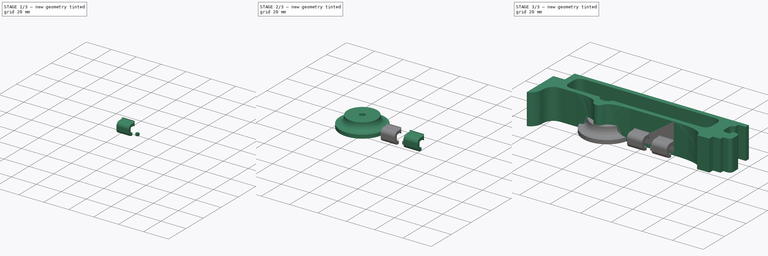
[diagram: build sequence overview — one tinted view per stage of 3, left to right]
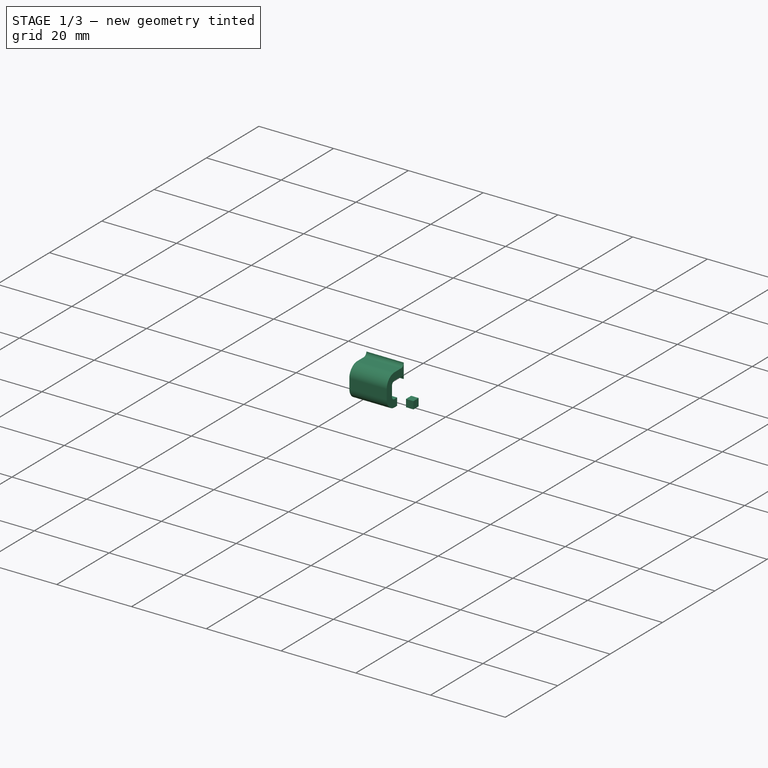
[diagram: stage 1 of 3 — iso view after this stage's code; geometry added in this stage tinted green]
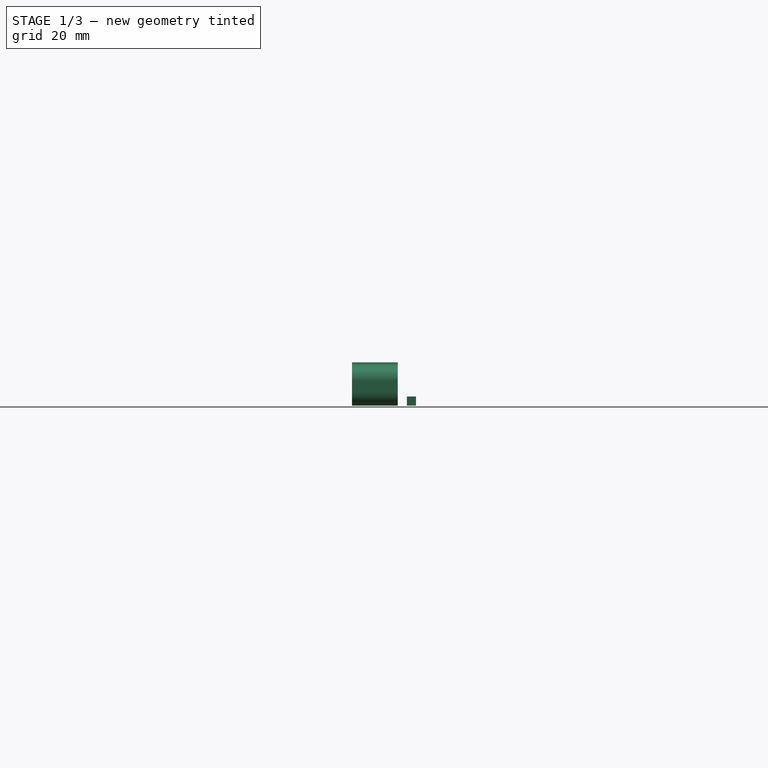
[diagram: stage 1 of 3 — front view after this stage's code; geometry added in this stage tinted green]
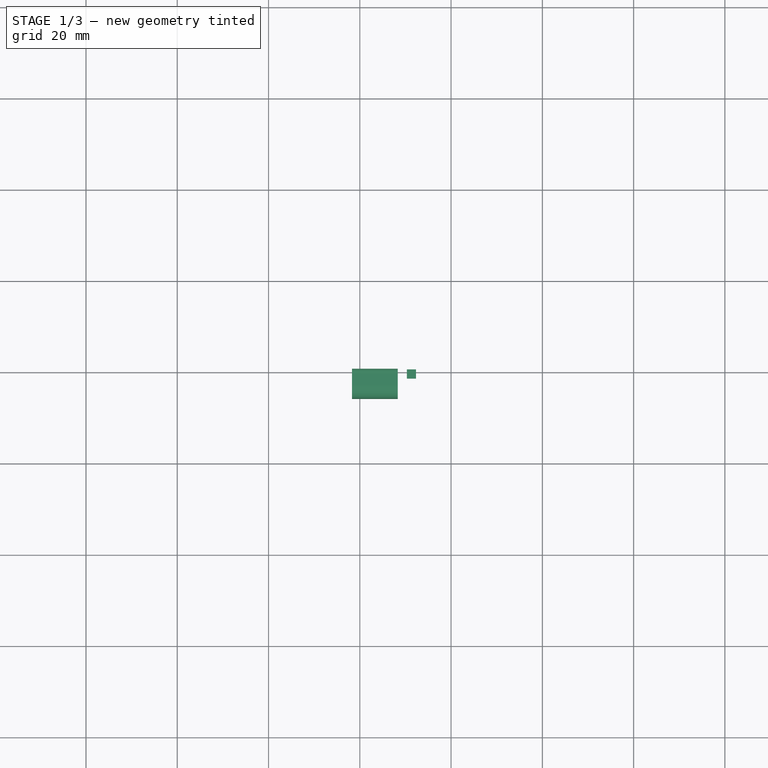
[diagram: stage 1 of 3 — top view after this stage's code; geometry added in this stage tinted green]
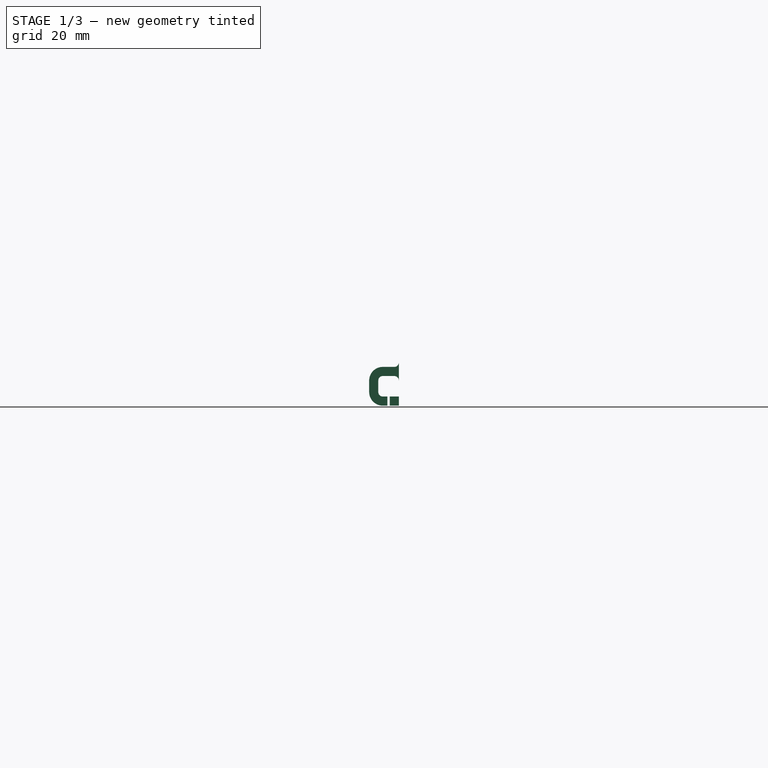
[diagram: stage 1 of 3 — right view after this stage's code; geometry added in this stage tinted green]
FCSTD DOCUMENT  (FreeCAD 0.19R0.19.2)
Label: v0_18
License: All rights reserved
LicenseURL: http://en.wikipedia.org/wiki/All_rights_reserved
objects: Sketcher::SketchObject×5, Part::Extrusion×4, Part::Revolution×1, Part::Box×1
note: 11 computed .brp shape members not serialized (recipe doc carries the construction recipe); baked Part::Feature solids carry a one-line shape summary decoded from their .brp

FEATURE [Sketcher::SketchObject] Sketch045
  FullyConstrained = true
  MapMode = 4
  Placement = pos=(0,0,0) rot=(0.57735,0.57735,0.57735;2.0944rad)
  sketch-geometry (14):
    g0: LineSegment StartX=6.08745 StartY=-4.11588 StartZ=0 EndX=6.08745 EndY=-2.11589 EndZ=0
    g1: LineSegment StartX=8.08745 StartY=1.38411 StartZ=0 EndX=8.08745 EndY=-1.11589 EndZ=0
    g2: ArcOfCircle CenterX=7.08745 CenterY=-1.11589 CenterZ=0 NormalX=0 NormalY=0 NormalZ=1 AngleXU=0 Radius=1 StartAngle=4.71239 EndAngle=6.28319
    g3: LineSegment StartX=6.08745 StartY=-2.11589 StartZ=0 EndX=7.08745 EndY=-2.11589 EndZ=0
    g4: LineSegment StartX=6.08745 StartY=-4.11588 StartZ=0 EndX=7.08745 EndY=-4.11588 EndZ=0
    g5: ArcOfCircle CenterX=7.08745 CenterY=-1.11589 CenterZ=0 NormalX=0 NormalY=0 NormalZ=1 AngleXU=0 Radius=3 StartAngle=4.71239 EndAngle=6.28319
    g6: ArcOfCircle CenterX=7.08745 CenterY=1.38411 CenterZ=0 NormalX=0 NormalY=0 NormalZ=1 AngleXU=0 Radius=1 StartAngle=5.35e-14 EndAngle=1.5708
    g7: LineSegment StartX=10.0875 StartY=-1.11588 StartZ=0 EndX=10.0875 EndY=1.38411 EndZ=0
    g8: ArcOfCircle CenterX=7.08745 CenterY=1.38411 CenterZ=0 NormalX=0 NormalY=0 NormalZ=1 AngleXU=0 Radius=3 StartAngle=3.57e-14 EndAngle=1.5708
    g9: ArcOfCircle CenterX=4.58745 CenterY=1.38412 CenterZ=0 NormalX=0 NormalY=0 NormalZ=1 AngleXU=0 Radius=1 StartAngle=1.57081 EndAngle=3.14159
    g10: LineSegment StartX=4.58744 StartY=2.38411 StartZ=0 EndX=7.08745 EndY=2.38411 EndZ=0
    g11: LineSegment StartX=4.58745 StartY=4.38411 StartZ=0 EndX=7.08745 EndY=4.38411 EndZ=0
    g12: ArcOfCircle CenterX=4.58745 CenterY=5.38411 CenterZ=0 NormalX=0 NormalY=0 NormalZ=1 AngleXU=0 Radius=1 StartAngle=3.14159 EndAngle=4.71239
    g13: LineSegment StartX=3.58745 StartY=5.38411 StartZ=0 EndX=3.58745 EndY=1.38411 EndZ=0
  constraints (33):
    c: Vertical(g0)
    c: Block(g0)
    c: Block(g1)
    c: Coincident(g2,g1)
    c: Coincident(g3,g0)
    c: Coincident(g3,g2)
    c: Horizontal(g3)
    c: Block(g2)
    c: Coincident(g4,g0)
    c: Horizontal(g4)
    c: Coincident(g5,g2)
    c: Block(g5)
    c: Block(g4)
    c: Coincident(g6,g1)
    c: Block(g6)
    c: Coincident(g7,g5)
    c: Vertical(g7)
    c: Coincident(g8,g6)
    c: Block(g8)
    c: Block(g7)
    c: Coincident(g10,g9)
    c: Coincident(g10,g6)
    c: Horizontal(g10)
    c: Block(g10)
    c: Block(g9)
    c: Coincident(g11,g8)
    c: Horizontal(g11)
    c: Block(g12)
    c: Block(g11)
    c: Coincident(g13,g12)
    c: Coincident(g13,g9)
    c: Vertical(g13)
    c: Tangent(g13,g9)
FEATURE [Part::Extrusion] Extrude040
  Base = -> Sketch045
  Dir = (1,0,0)
  DirMode = 2
  FaceMakerClass = Part::FaceMakerBullseye
  LengthFwd = 10
  LengthRev = 0
  Placement = pos=(-71.7,-15.71,4.115) rot=(0,0,1;3.14159rad)
  Solid = true
  Symmetric = false
FEATURE [Part::Box] Box016  label="Cube016"
  AttacherType = Attacher::AttachEngine3D
  Height = 2
  Length = 2
  Placement = pos=(-69.7,-21.3,0) rot=(0,0,1;0rad)
  Width = 2
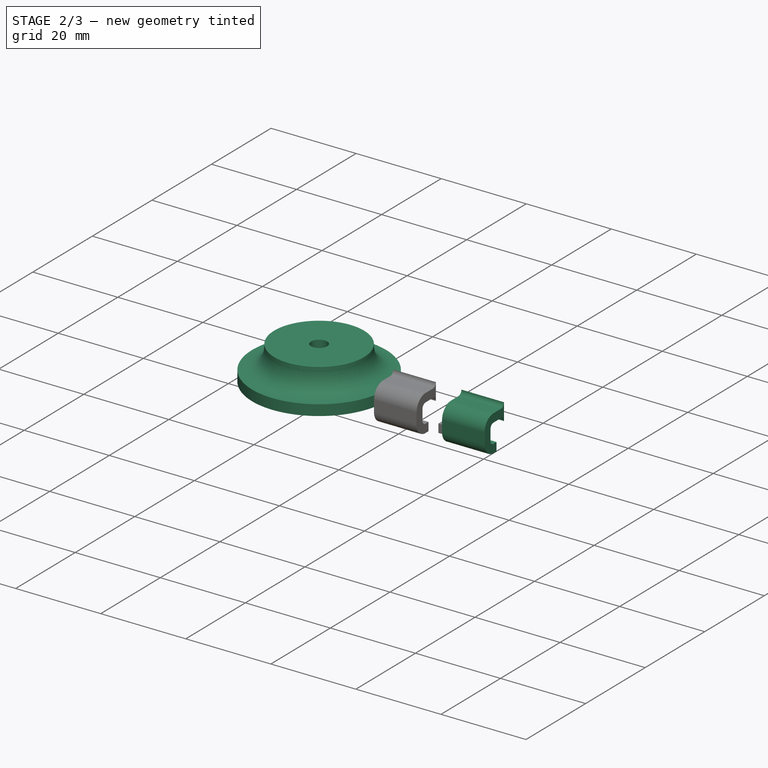
[diagram: stage 2 of 3 — iso view after this stage's code; geometry added in this stage tinted green]
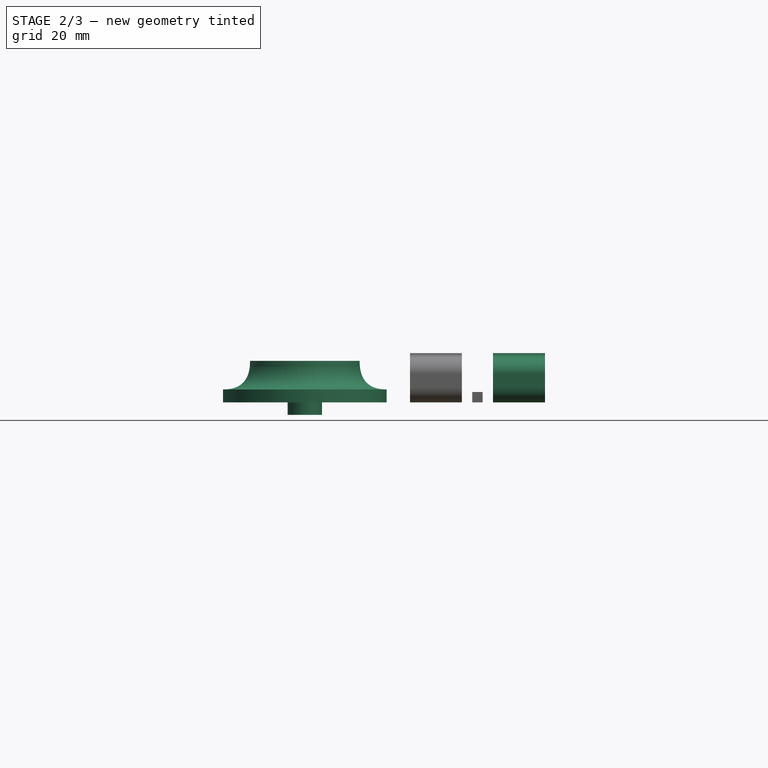
[diagram: stage 2 of 3 — front view after this stage's code; geometry added in this stage tinted green]
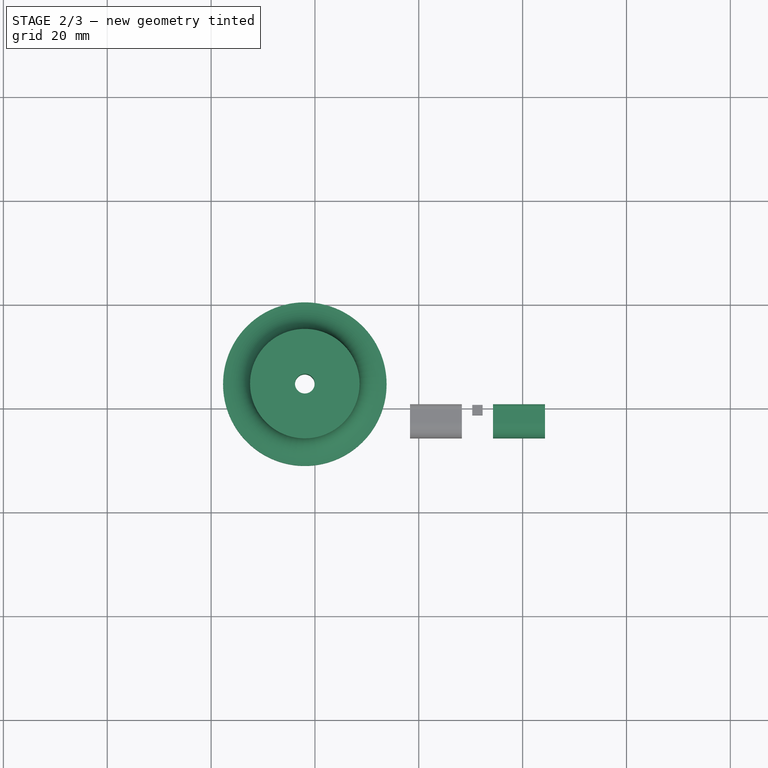
[diagram: stage 2 of 3 — top view after this stage's code; geometry added in this stage tinted green]
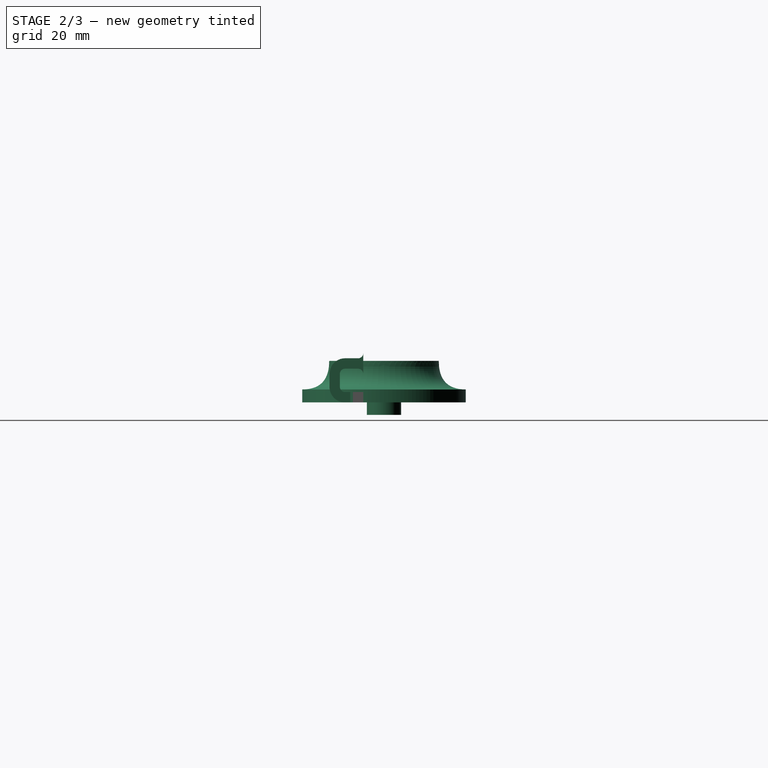
[diagram: stage 2 of 3 — right view after this stage's code; geometry added in this stage tinted green]
FEATURE [Sketcher::SketchObject] Sketch004
  FullyConstrained = true
  Placement = pos=(0,0,0) rot=(1,0,0;1.5708rad)
  sketch-geometry (12):
    g0: LineSegment StartX=15.75 StartY=2.5 StartZ=0 EndX=15.75 EndY=0 EndZ=0
    g1: Circle CenterX=15.75 CenterY=2.5 CenterZ=0 NormalX=0 NormalY=0 NormalZ=1 AngleXU=0 Radius=1
    g2: Circle CenterX=10.55 CenterY=2.5 CenterZ=0 NormalX=0 NormalY=0 NormalZ=1 AngleXU=0 Radius=1
    g3: Circle CenterX=10.55 CenterY=8 CenterZ=0 NormalX=0 NormalY=0 NormalZ=1 AngleXU=0 Radius=1
    g4: BSplineCurve PolesCount=3 KnotsCount=2 Degree=2 IsPeriodic=0
    g5: GeomPoint X=15.75 Y=2.5 Z=0
    g6: GeomPoint X=10.55 Y=8 Z=0
    g7: LineSegment StartX=1.9 StartY=8 StartZ=0 EndX=10.55 EndY=8 EndZ=0
    g8: LineSegment StartX=1.9 StartY=-2.4 StartZ=0 EndX=1.9 EndY=8 EndZ=0
    g9: LineSegment StartX=3.30092 StartY=-2.4 StartZ=0 EndX=3.30092 EndY=0 EndZ=0
    g10: LineSegment StartX=15.75 StartY=0 StartZ=0 EndX=3.30092 EndY=0 EndZ=0
    g11: LineSegment StartX=3.30092 StartY=-2.4 StartZ=0 EndX=1.9 EndY=-2.4 EndZ=0
  constraints (26):
    c: Vertical(g0)
    c: Distance(g0) = 2.5
    c: Coincident(g4,g0)
    c: Weight(g1) = 1
    c: Equal(g1,g2)
    c: Equal(g1,g3)
    c: InternalAlignment(g1,g4)
    c: InternalAlignment(g2,g4)
    c: InternalAlignment(g3,g4)
    c: InternalAlignment(g5,g4)
    c: InternalAlignment(g6,g4)
    c: Block(g4)
    c: Coincident(g7,g4)
    c: Horizontal(g7)
    c: Vertical(g8)
    c: Coincident(g8,g7)
    c: Block(g8)
    c: Vertical(g9)
    c: Coincident(g10,g0)
    c: PointOnObject(g10,g-1)
    c: Horizontal(g10)
    c: Coincident(g10,g9)
    c: Block(g9)
    c: Coincident(g11,g9)
    c: Coincident(g11,g8)
    c: Horizontal(g11)
FEATURE [Part::Revolution] Revolve  label="mainScrewStandRevolve"
  Angle = 360
  Axis = (0,0,1)
  Base = (0,0,0)
  FaceMakerClass = Part::FaceMakerBullseye
  Placement = pos=(-101.95,-15.3,0) rot=(0,0,1;0rad)
  Solid = true
  Source = -> Sketch004
  Symmetric = false
FEATURE [Sketcher::SketchObject] Sketch044
  FullyConstrained = true
  MapMode = 4
  Placement = pos=(0,0,0) rot=(0.57735,0.57735,0.57735;2.0944rad)
  sketch-geometry (14):
    g0: LineSegment StartX=6.08745 StartY=-4.11588 StartZ=0 EndX=6.08745 EndY=-2.11589 EndZ=0
    g1: LineSegment StartX=8.08745 StartY=1.38411 StartZ=0 EndX=8.08745 EndY=-1.11589 EndZ=0
    g2: ArcOfCircle CenterX=7.08745 CenterY=-1.11589 CenterZ=0 NormalX=0 NormalY=0 NormalZ=1 AngleXU=0 Radius=1 StartAngle=4.71239 EndAngle=6.28319
    g3: LineSegment StartX=6.08745 StartY=-2.11589 StartZ=0 EndX=7.08745 EndY=-2.11589 EndZ=0
    g4: LineSegment StartX=6.08745 StartY=-4.11588 StartZ=0 EndX=7.08745 EndY=-4.11588 EndZ=0
    g5: ArcOfCircle CenterX=7.08745 CenterY=-1.11589 CenterZ=0 NormalX=0 NormalY=0 NormalZ=1 AngleXU=0 Radius=3 StartAngle=4.71239 EndAngle=6.28319
    g6: ArcOfCircle CenterX=7.08745 CenterY=1.38411 CenterZ=0 NormalX=0 NormalY=0 NormalZ=1 AngleXU=0 Radius=1 StartAngle=5.35e-14 EndAngle=1.5708
    g7: LineSegment StartX=10.0875 StartY=-1.11588 StartZ=0 EndX=10.0875 EndY=1.38411 EndZ=0
    g8: ArcOfCircle CenterX=7.08745 CenterY=1.38411 CenterZ=0 NormalX=0 NormalY=0 NormalZ=1 AngleXU=0 Radius=3 StartAngle=3.57e-14 EndAngle=1.5708
    g9: ArcOfCircle CenterX=4.58745 CenterY=1.38412 CenterZ=0 NormalX=0 NormalY=0 NormalZ=1 AngleXU=0 Radius=1 StartAngle=1.57081 EndAngle=3.14159
    g10: LineSegment StartX=4.58744 StartY=2.38411 StartZ=0 EndX=7.08745 EndY=2.38411 EndZ=0
    g11: LineSegment StartX=4.58745 StartY=4.38411 StartZ=0 EndX=7.08745 EndY=4.38411 EndZ=0
    g12: ArcOfCircle CenterX=4.58745 CenterY=5.38411 CenterZ=0 NormalX=0 NormalY=0 NormalZ=1 AngleXU=0 Radius=1 StartAngle=3.14159 EndAngle=4.71239
    g13: LineSegment StartX=3.58745 StartY=5.38411 StartZ=0 EndX=3.58745 EndY=1.38411 EndZ=0
  constraints (33):
    c: Vertical(g0)
    c: Block(g0)
    c: Block(g1)
    c: Coincident(g2,g1)
    c: Coincident(g3,g0)
    c: Coincident(g3,g2)
    c: Horizontal(g3)
    c: Block(g2)
    c: Coincident(g4,g0)
    c: Horizontal(g4)
    c: Coincident(g5,g2)
    c: Block(g5)
    c: Block(g4)
    c: Coincident(g6,g1)
    c: Block(g6)
    c: Coincident(g7,g5)
    c: Vertical(g7)
    c: Coincident(g8,g6)
    c: Block(g8)
    c: Block(g7)
    c: Coincident(g10,g9)
    c: Coincident(g10,g6)
    c: Horizontal(g10)
    c: Block(g10)
    c: Block(g9)
    c: Coincident(g11,g8)
    c: Horizontal(g11)
    c: Block(g12)
    c: Block(g11)
    c: Coincident(g13,g12)
    c: Coincident(g13,g9)
    c: Vertical(g13)
    c: Tangent(g13,g9)
FEATURE [Part::Extrusion] Extrude039
  Base = -> Sketch044
  Dir = (1,0,0)
  DirMode = 2
  FaceMakerClass = Part::FaceMakerBullseye
  LengthFwd = 10
  LengthRev = 0
  Placement = pos=(-55.7,-15.71,4.115) rot=(0,0,1;3.14159rad)
  Solid = true
  Symmetric = false
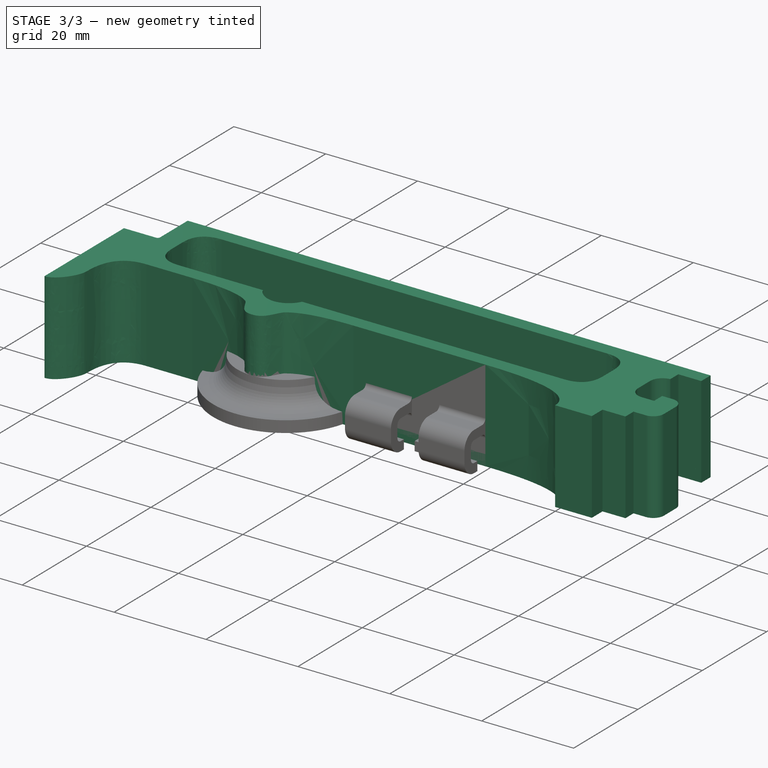
[diagram: stage 3 of 3 — iso view after this stage's code; geometry added in this stage tinted green]
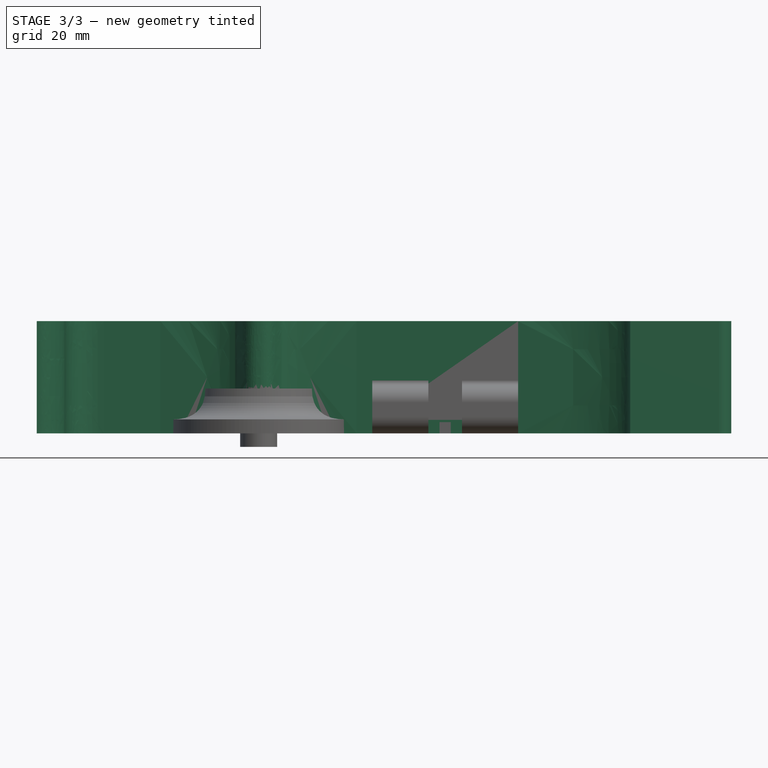
[diagram: stage 3 of 3 — front view after this stage's code; geometry added in this stage tinted green]
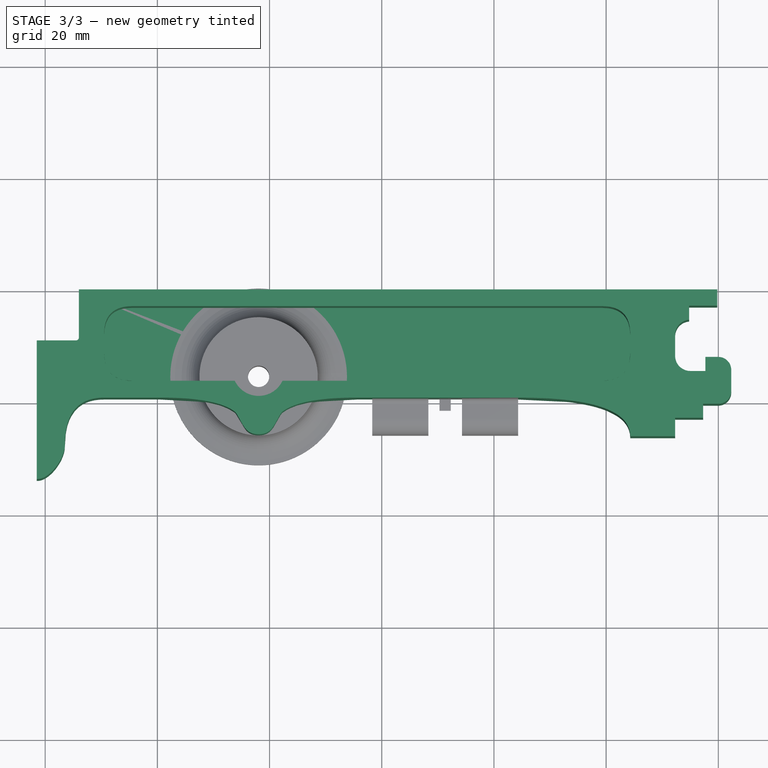
[diagram: stage 3 of 3 — top view after this stage's code; geometry added in this stage tinted green]
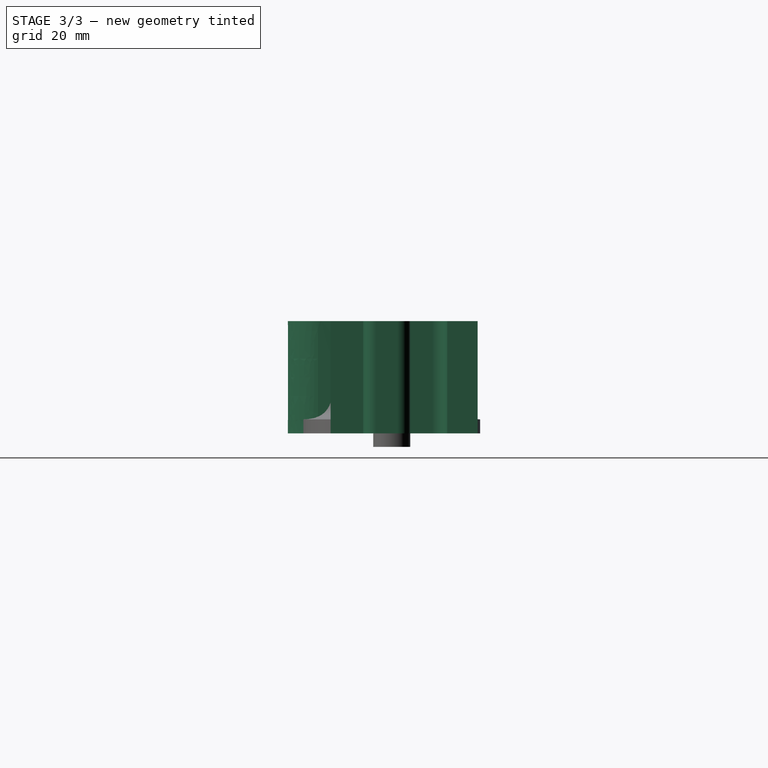
[diagram: stage 3 of 3 — right view after this stage's code; geometry added in this stage tinted green]
FEATURE [Sketcher::SketchObject] Sketch
  FullyConstrained = true
  sketch-geometry (69):
    g0: ArcOfCircle CenterX=-20 CenterY=-14.35 CenterZ=0 NormalX=0 NormalY=0 NormalZ=1 AngleXU=0 Radius=2.3 StartAngle=8e-16 EndAngle=1.5708
    g1: ArcOfCircle CenterX=-20 CenterY=-18.1 CenterZ=0 NormalX=0 NormalY=0 NormalZ=1 AngleXU=0 Radius=2.3 StartAngle=4.71239 EndAngle=6.28319
    g2: LineSegment StartX=-20 StartY=-20.4 StartZ=0 EndX=-22.7 EndY=-20.4 EndZ=0
    g3: LineSegment StartX=-22.7 StartY=-22.9 StartZ=0 EndX=-22.7 EndY=-20.4 EndZ=0
    g4: LineSegment StartX=-17.7 StartY=-14.35 StartZ=0 EndX=-17.7 EndY=-18.1 EndZ=0
    g5: LineSegment StartX=-25.2 StartY=-5.40742 StartZ=0 EndX=-25.2 EndY=-2.9 EndZ=0
    g6: LineSegment StartX=-25.2 StartY=-2.9 StartZ=0 EndX=-20.2 EndY=-2.9 EndZ=0
    g7: LineSegment StartX=-20.2 StartY=-2.9 StartZ=0 EndX=-20.2 EndY=0 EndZ=0
    g8: ArcOfCircle CenterX=-25 CenterY=-8.1 CenterZ=0 NormalX=0 NormalY=0 NormalZ=1 AngleXU=0 Radius=2.7 StartAngle=1.64494 EndAngle=3.14159
    g9: ArcOfCircle CenterX=-25 CenterY=-11.85 CenterZ=0 NormalX=0 NormalY=0 NormalZ=1 AngleXU=0 Radius=2.7 StartAngle=3.14159 EndAngle=4.71239
    g10: LineSegment StartX=-27.7 StartY=-8.1 StartZ=0 EndX=-27.7 EndY=-11.85 EndZ=0
    g11: LineSegment StartX=-25 StartY=-14.55 StartZ=0 EndX=-22.3 EndY=-14.55 EndZ=0
    g12: LineSegment StartX=-22.3 StartY=-12.05 StartZ=0 EndX=-22.3 EndY=-14.55 EndZ=0
    g13: LineSegment StartX=-22.3 StartY=-12.05 StartZ=0 EndX=-20 EndY=-12.05 EndZ=0
    g14: LineSegment StartX=-27.7 StartY=-22.9 StartZ=0 EndX=-22.7 EndY=-22.9 EndZ=0
    g15: LineSegment StartX=-27.7 StartY=-22.9 StartZ=0 EndX=-27.7 EndY=-26.2 EndZ=0
    g16: Circle CenterX=-101.95 CenterY=-14.3 CenterZ=0 NormalX=0 NormalY=0 NormalZ=1 AngleXU=0 Radius=3.25
    g17: LineSegment StartX=-134 StartY=0 StartZ=0 EndX=-20.2 EndY=0 EndZ=0
    g18: LineSegment StartX=-134 StartY=2.68e-14 StartZ=0 EndX=-134 EndY=-8.6 EndZ=0
    g19: LineSegment StartX=-134.5 StartY=-9.1 StartZ=0 EndX=-141.5 EndY=-9.1 EndZ=0
    g20: ArcOfCircle CenterX=-134.5 CenterY=-8.6 CenterZ=0 NormalX=0 NormalY=0 NormalZ=1 AngleXU=0 Radius=0.5 StartAngle=4.71239 EndAngle=6.28319
    g21: Circle CenterX=-97.7 CenterY=-21.8 CenterZ=0 NormalX=0 NormalY=0 NormalZ=1 AngleXU=0 Radius=1
    g22: Circle CenterX=-94.45 CenterY=-19.3 CenterZ=0 NormalX=0 NormalY=0 NormalZ=1 AngleXU=0 Radius=1
    g23: Circle CenterX=-84.45 CenterY=-19.3 CenterZ=0 NormalX=0 NormalY=0 NormalZ=1 AngleXU=0 Radius=1
    g24: BSplineCurve PolesCount=3 KnotsCount=2 Degree=2 IsPeriodic=0
    g25: GeomPoint X=-97.7 Y=-21.8 Z=0
    g26: GeomPoint X=-84.45 Y=-19.3 Z=0
    g27: Circle CenterX=-106.2 CenterY=-21.8 CenterZ=0 NormalX=0 NormalY=0 NormalZ=1 AngleXU=0 Radius=1
    g28: Circle CenterX=-109.45 CenterY=-19.3 CenterZ=0 NormalX=0 NormalY=0 NormalZ=1 AngleXU=0 Radius=1
    g29: Circle CenterX=-119.45 CenterY=-19.3 CenterZ=0 NormalX=0 NormalY=0 NormalZ=1 AngleXU=0 Radius=1
    g30: BSplineCurve PolesCount=3 KnotsCount=2 Degree=2 IsPeriodic=0
    g31: GeomPoint X=-106.2 Y=-21.8 Z=0
    g32: GeomPoint X=-119.45 Y=-19.3 Z=0
    g33: LineSegment StartX=-141.5 StartY=-9.1 StartZ=0 EndX=-141.5 EndY=-33.8 EndZ=0
    g34-g37: Circle x4 (B-spline internal-alignment scaffolding for g38; pole/knot coordinates omitted)
    g38: BSplineCurve PolesCount=4 KnotsCount=2 Degree=3 IsPeriodic=0
    g39: GeomPoint X=-141.5 Y=-33.8 Z=0
    g40: GeomPoint X=-136.5 Y=-27.8 Z=0
    g41: Circle CenterX=-136.5 CenterY=-27.8 CenterZ=0 NormalX=0 NormalY=0 NormalZ=1 AngleXU=0 Radius=1
    g42: Circle CenterX=-136.5 CenterY=-19.3 CenterZ=0 NormalX=0 NormalY=0 NormalZ=1 AngleXU=0 Radius=1
    g43: Circle CenterX=-129.5 CenterY=-19.3 CenterZ=0 NormalX=0 NormalY=0 NormalZ=1 AngleXU=0 Radius=1
    g44: BSplineCurve PolesCount=3 KnotsCount=2 Degree=2 IsPeriodic=0
    g45: GeomPoint X=-136.5 Y=-27.8 Z=0
    g46: GeomPoint X=-129.5 Y=-19.3 Z=0
    g47: LineSegment StartX=-129.5 StartY=-19.3 StartZ=0 EndX=-119.45 EndY=-19.3 EndZ=0
    g48: LineSegment StartX=-35.7 StartY=-26.2 StartZ=0 EndX=-27.7 EndY=-26.2 EndZ=0
    g49: Circle CenterX=-35.7 CenterY=-26.2 CenterZ=0 NormalX=0 NormalY=0 NormalZ=1 AngleXU=0 Radius=1
    g50: Circle CenterX=-35.7 CenterY=-19.3 CenterZ=0 NormalX=0 NormalY=0 NormalZ=1 AngleXU=0 Radius=1
    g51: Circle CenterX=-55.7 CenterY=-19.3 CenterZ=0 NormalX=0 NormalY=0 NormalZ=1 AngleXU=0 Radius=1
    g52: BSplineCurve PolesCount=3 KnotsCount=2 Degree=2 IsPeriodic=0
    g53: GeomPoint X=-35.7 Y=-26.2 Z=0
    g54: GeomPoint X=-55.7 Y=-19.3 Z=0
    g55: LineSegment StartX=-84.45 StartY=-19.3 StartZ=0 EndX=-55.7 EndY=-19.3 EndZ=0
    g56-g62: Circle x7 (B-spline internal-alignment scaffolding for g63; pole/knot coordinates omitted)
    g63: BSplineCurve PolesCount=7 KnotsCount=5 Degree=3 IsPeriodic=0
    g64-g68: GeomPoint x5 (B-spline internal-alignment scaffolding for g63; pole/knot coordinates omitted)
  constraints (111):
    c: Block(g1)
    c: Block(g0)
    c: Coincident(g2,g1)
    c: Horizontal(g2)
    c: Vertical(g3)
    c: Coincident(g3,g2)
    c: Coincident(g4,g0)
    c: Coincident(g4,g1)
    c: Vertical(g4)
    c: Vertical(g5)
    c: Block(g5)
    c: Coincident(g6,g5)
    c: Horizontal(g6)
    c: Vertical(g7)
    c: Block(g7)
    c: Block(g6)
    c: Coincident(g8,g5)
    c: Block(g9)
    c: Coincident(g10,g8)
    c: Coincident(g10,g9)
    c: Vertical(g10)
    c: Block(g10)
    c: Coincident(g11,g9)
    c: Horizontal(g11)
    c: Vertical(g12)
    c: Coincident(g12,g11)
    c: Block(g12)
    c: Coincident(g13,g0)
    c: Horizontal(g13)
    c: Block(g13)
    c: Coincident(g14,g3)
    c: Horizontal(g14)
    c: Block(g14)
    c: Coincident(g15,g14)
    c: Vertical(g15)
    c: Block(g16)
    c: Coincident(g17,g7)
    c: Horizontal(g17)
    c: Vertical(g18)
    c: Distance(g18) = 8.6
    c: Horizontal(g19)
    c: Distance(g19) = 7
    c: Coincident(g20,g18)
    c: Coincident(g20,g19)
    c: Block(g20)
    c: Block(g17)
    c: Weight(g21) = 1
    c: Equal(g21,g22)
    c: Equal(g21,g23)
    c: InternalAlignment(g21,g24)
    c: InternalAlignment(g22,g24)
    c: InternalAlignment(g23,g24)
    c: InternalAlignment(g25,g24)
    c: InternalAlignment(g26,g24)
    c: Weight(g27) = 1
    c: Equal(g27,g28)
    c: Equal(g27,g29)
    c: InternalAlignment(g27,g30)
    c: InternalAlignment(g28,g30)
    c: InternalAlignment(g29,g30)
    c: InternalAlignment(g31,g30)
    c: InternalAlignment(g32,g30)
    c: Block(g30)
    c: Block(g24)
    c: Coincident(g33,g19)
    c: Vertical(g33)
    c: Block(g33)
    c: Coincident(g38,g33)
    c: Weight(g34) = 1
    c: Equal(g34,g35)
    c: Equal(g34,g36)
    c: Equal(g34,g37)
    c: InternalAlignment(g34-g37 -> g38) x4
    c: InternalAlignment(g39,g38)
    c: InternalAlignment(g40,g38)
    c: Weight(g41) = 1
    c: Equal(g41,g42)
    c: Equal(g41,g43)
    c: InternalAlignment(g41,g44)
    c: InternalAlignment(g42,g44)
    c: InternalAlignment(g43,g44)
    c: InternalAlignment(g45,g44)
    c: InternalAlignment(g46,g44)
    c: Block(g38)
    c: Block(g44)
    c: Coincident(g47,g44)
    c: Coincident(g47,g30)
    c: Horizontal(g47)
    c: Horizontal(g48)
    c: Distance(g48) = 8
    c: Block(g48)
    c: Block(g15)
    c: Block(g8)
    c: Coincident(g52,g48)
    c: Weight(g49) = 1
    c: Equal(g49,g50)
    c: Equal(g49,g51)
    c: InternalAlignment(g49,g52)
    c: InternalAlignment(g50,g52)
    c: InternalAlignment(g51,g52)
    c: InternalAlignment(g53,g52)
    c: InternalAlignment(g54,g52)
    c: Block(g52)
    c: Coincident(g55,g24)
    c: Coincident(g55,g52)
    c: Horizontal(g55)
    c: Weight(g56) = 1
    c: Equal(g56, g57-g62) x6
    c: InternalAlignment(g56-g62 -> g63) x7
    c: InternalAlignment(g64-g68 -> g63) x5
    c: Block(g63)
FEATURE [Part::Extrusion] Extrude
  Base = -> Sketch
  Dir = (0,0,1)
  DirMode = 2
  FaceMakerClass = Part::FaceMakerBullseye
  LengthFwd = 2.4
  LengthRev = 0
  Solid = true
  Symmetric = false
FEATURE [Sketcher::SketchObject] Sketch001
  FullyConstrained = true
  sketch-geometry (98):
    g0: ArcOfCircle CenterX=-20 CenterY=-14.35 CenterZ=0 NormalX=0 NormalY=0 NormalZ=1 AngleXU=0 Radius=2.3 StartAngle=8e-16 EndAngle=1.5708
    g1: ArcOfCircle CenterX=-20 CenterY=-18.1 CenterZ=0 NormalX=0 NormalY=0 NormalZ=1 AngleXU=0 Radius=2.3 StartAngle=4.71239 EndAngle=6.28319
    g2: LineSegment StartX=-20 StartY=-20.4 StartZ=0 EndX=-22.7 EndY=-20.4 EndZ=0
    g3: LineSegment StartX=-22.7 StartY=-22.9 StartZ=0 EndX=-22.7 EndY=-20.4 EndZ=0
    g4: LineSegment StartX=-17.7 StartY=-14.35 StartZ=0 EndX=-17.7 EndY=-18.1 EndZ=0
    g5: LineSegment StartX=-25.2 StartY=-5.40742 StartZ=0 EndX=-25.2 EndY=-2.9 EndZ=0
    g6: LineSegment StartX=-25.2 StartY=-2.9 StartZ=0 EndX=-20.2 EndY=-2.9 EndZ=0
    g7: LineSegment StartX=-20.2 StartY=-2.9 StartZ=0 EndX=-20.2 EndY=0 EndZ=0
    g8: ArcOfCircle CenterX=-25 CenterY=-8.1 CenterZ=0 NormalX=0 NormalY=0 NormalZ=1 AngleXU=0 Radius=2.7 StartAngle=1.64494 EndAngle=3.14159
    g9: ArcOfCircle CenterX=-25 CenterY=-11.85 CenterZ=0 NormalX=0 NormalY=0 NormalZ=1 AngleXU=0 Radius=2.7 StartAngle=3.14159 EndAngle=4.71239
    g10: LineSegment StartX=-27.7 StartY=-8.1 StartZ=0 EndX=-27.7 EndY=-11.85 EndZ=0
    g11: LineSegment StartX=-25 StartY=-14.55 StartZ=0 EndX=-22.3 EndY=-14.55 EndZ=0
    g12: LineSegment StartX=-22.3 StartY=-12.05 StartZ=0 EndX=-22.3 EndY=-14.55 EndZ=0
    g13: LineSegment StartX=-22.3 StartY=-12.05 StartZ=0 EndX=-20 EndY=-12.05 EndZ=0
    g14: LineSegment StartX=-27.7 StartY=-22.9 StartZ=0 EndX=-22.7 EndY=-22.9 EndZ=0
    g15: LineSegment StartX=-27.7 StartY=-22.9 StartZ=0 EndX=-27.7 EndY=-26.2 EndZ=0
    g16: LineSegment StartX=-134 StartY=0 StartZ=0 EndX=-134 EndY=-8.6 EndZ=0
    g17: LineSegment StartX=-134.5 StartY=-9.1 StartZ=0 EndX=-141.5 EndY=-9.1 EndZ=0
    g18: ArcOfCircle CenterX=-134.5 CenterY=-8.6 CenterZ=0 NormalX=0 NormalY=0 NormalZ=1 AngleXU=0 Radius=0.5 StartAngle=4.71239 EndAngle=6.28319
    g19: Circle CenterX=-97.7 CenterY=-21.8 CenterZ=0 NormalX=0 NormalY=0 NormalZ=1 AngleXU=0 Radius=1
    g20: Circle CenterX=-94.45 CenterY=-19.3 CenterZ=0 NormalX=0 NormalY=0 NormalZ=1 AngleXU=0 Radius=1
    g21: Circle CenterX=-84.45 CenterY=-19.3 CenterZ=0 NormalX=0 NormalY=0 NormalZ=1 AngleXU=0 Radius=1
    g22: BSplineCurve PolesCount=3 KnotsCount=2 Degree=2 IsPeriodic=0
    g23: GeomPoint X=-97.7 Y=-21.8 Z=0
    g24: GeomPoint X=-84.45 Y=-19.3 Z=0
    g25: Circle CenterX=-106.2 CenterY=-21.8 CenterZ=0 NormalX=0 NormalY=0 NormalZ=1 AngleXU=0 Radius=1
    g26: Circle CenterX=-109.45 CenterY=-19.3 CenterZ=0 NormalX=0 NormalY=0 NormalZ=1 AngleXU=0 Radius=1
    g27: Circle CenterX=-119.45 CenterY=-19.3 CenterZ=0 NormalX=0 NormalY=0 NormalZ=1 AngleXU=0 Radius=1
    g28: BSplineCurve PolesCount=3 KnotsCount=2 Degree=2 IsPeriodic=0
    g29: GeomPoint X=-106.2 Y=-21.8 Z=0
    g30: GeomPoint X=-119.45 Y=-19.3 Z=0
    g31: LineSegment StartX=-141.5 StartY=-9.1 StartZ=0 EndX=-141.5 EndY=-33.8 EndZ=0
    g32-g35: Circle x4 (B-spline internal-alignment scaffolding for g36; pole/knot coordinates omitted)
    g36: BSplineCurve PolesCount=4 KnotsCount=2 Degree=3 IsPeriodic=0
    g37: GeomPoint X=-141.5 Y=-33.8 Z=0
    g38: GeomPoint X=-136.5 Y=-27.8 Z=0
    g39: Circle CenterX=-136.5 CenterY=-27.8 CenterZ=0 NormalX=0 NormalY=0 NormalZ=1 AngleXU=0 Radius=1
    g40: Circle CenterX=-136.5 CenterY=-19.3 CenterZ=0 NormalX=0 NormalY=0 NormalZ=1 AngleXU=0 Radius=1
    g41: Circle CenterX=-129.5 CenterY=-19.3 CenterZ=0 NormalX=0 NormalY=0 NormalZ=1 AngleXU=0 Radius=1
    g42: BSplineCurve PolesCount=3 KnotsCount=2 Degree=2 IsPeriodic=0
    g43: GeomPoint X=-136.5 Y=-27.8 Z=0
    g44: GeomPoint X=-129.5 Y=-19.3 Z=0
    g45: LineSegment StartX=-129.5 StartY=-19.3 StartZ=0 EndX=-119.45 EndY=-19.3 EndZ=0
    g46: LineSegment StartX=-35.7 StartY=-26.2 StartZ=0 EndX=-27.7 EndY=-26.2 EndZ=0
    g47: Circle CenterX=-35.7 CenterY=-26.2 CenterZ=0 NormalX=0 NormalY=0 NormalZ=1 AngleXU=0 Radius=1
    g48: Circle CenterX=-35.7 CenterY=-19.3 CenterZ=0 NormalX=0 NormalY=0 NormalZ=1 AngleXU=0 Radius=1
    g49: Circle CenterX=-55.7 CenterY=-19.3 CenterZ=0 NormalX=0 NormalY=0 NormalZ=1 AngleXU=0 Radius=1
    g50: BSplineCurve PolesCount=3 KnotsCount=2 Degree=2 IsPeriodic=0
    g51: GeomPoint X=-35.7 Y=-26.2 Z=0
    g52: GeomPoint X=-55.7 Y=-19.3 Z=0
    g53: LineSegment StartX=-84.45 StartY=-19.3 StartZ=0 EndX=-55.7 EndY=-19.3 EndZ=0
    g54-g60: Circle x7 (B-spline internal-alignment scaffolding for g61; pole/knot coordinates omitted)
    g61: BSplineCurve PolesCount=7 KnotsCount=5 Degree=3 IsPeriodic=0
    g62-g66: GeomPoint x5 (B-spline internal-alignment scaffolding for g61; pole/knot coordinates omitted)
    g67: LineSegment StartX=-134 StartY=0 StartZ=0 EndX=-20.2 EndY=0 EndZ=0
    g68: ArcOfCircle CenterX=-101.95 CenterY=-14.3 CenterZ=0 NormalX=0 NormalY=0 NormalZ=1 AngleXU=0 Radius=4.69707 StartAngle=3.58144 EndAngle=5.84334
    g69: Circle CenterX=-40.7 CenterY=-3 CenterZ=0 NormalX=0 NormalY=0 NormalZ=1 AngleXU=0 Radius=1
    g70: Circle CenterX=-35.7 CenterY=-3 CenterZ=0 NormalX=0 NormalY=0 NormalZ=1 AngleXU=0 Radius=1
    g71: Circle CenterX=-35.7 CenterY=-8 CenterZ=0 NormalX=0 NormalY=0 NormalZ=1 AngleXU=0 Radius=1
    g72: BSplineCurve PolesCount=3 KnotsCount=2 Degree=2 IsPeriodic=0
    g73: GeomPoint X=-40.7 Y=-3 Z=0
    g74: GeomPoint X=-35.7 Y=-8 Z=0
    g75: Circle CenterX=-35.7 CenterY=-11.3 CenterZ=0 NormalX=0 NormalY=0 NormalZ=1 AngleXU=0 Radius=1
    g76: Circle CenterX=-35.7 CenterY=-16.3 CenterZ=0 NormalX=0 NormalY=0 NormalZ=1 AngleXU=0 Radius=1
    g77: Circle CenterX=-40.7 CenterY=-16.3 CenterZ=0 NormalX=0 NormalY=0 NormalZ=1 AngleXU=0 Radius=1
    g78: BSplineCurve PolesCount=3 KnotsCount=2 Degree=2 IsPeriodic=0
    g79: GeomPoint X=-35.7 Y=-11.3 Z=0
    g80: GeomPoint X=-40.7 Y=-16.3 Z=0
    g81: Circle CenterX=-124.5 CenterY=-16.3 CenterZ=0 NormalX=0 NormalY=0 NormalZ=1 AngleXU=0 Radius=1
    g82: Circle CenterX=-129.5 CenterY=-16.3 CenterZ=0 NormalX=0 NormalY=0 NormalZ=1 AngleXU=0 Radius=1
    g83: Circle CenterX=-129.5 CenterY=-11.3 CenterZ=0 NormalX=0 NormalY=0 NormalZ=1 AngleXU=0 Radius=1
    g84: BSplineCurve PolesCount=3 KnotsCount=2 Degree=2 IsPeriodic=0
    g85: GeomPoint X=-124.5 Y=-16.3 Z=0
    g86: GeomPoint X=-129.5 Y=-11.3 Z=0
    g87: Circle CenterX=-129.5 CenterY=-8 CenterZ=0 NormalX=0 NormalY=0 NormalZ=1 AngleXU=0 Radius=1
    g88: Circle CenterX=-129.5 CenterY=-3 CenterZ=0 NormalX=0 NormalY=0 NormalZ=1 AngleXU=0 Radius=1
    g89: Circle CenterX=-124.5 CenterY=-3 CenterZ=0 NormalX=0 NormalY=0 NormalZ=1 AngleXU=0 Radius=1
    g90: BSplineCurve PolesCount=3 KnotsCount=2 Degree=2 IsPeriodic=0
    g91: GeomPoint X=-129.5 Y=-8 Z=0
    g92: GeomPoint X=-124.5 Y=-3 Z=0
    g93: LineSegment StartX=-129.5 StartY=-8 StartZ=0 EndX=-129.5 EndY=-11.3 EndZ=0
    g94: LineSegment StartX=-124.5 StartY=-3 StartZ=0 EndX=-40.7 EndY=-3 EndZ=0
    g95: LineSegment StartX=-35.7 StartY=-8 StartZ=0 EndX=-35.7 EndY=-11.3 EndZ=0
    g96: LineSegment StartX=-40.7 StartY=-16.3 StartZ=0 EndX=-97.7 EndY=-16.3 EndZ=0
    g97: LineSegment StartX=-106.2 StartY=-16.3 StartZ=0 EndX=-124.5 EndY=-16.3 EndZ=0
  constraints (162):
    c: Block(g1)
    c: Block(g0)
    c: Coincident(g2,g1)
    c: Horizontal(g2)
    c: Vertical(g3)
    c: Coincident(g3,g2)
    c: Coincident(g4,g0)
    c: Coincident(g4,g1)
    c: Vertical(g4)
    c: Vertical(g5)
    c: Block(g5)
    c: Coincident(g6,g5)
    c: Horizontal(g6)
    c: Vertical(g7)
    c: Block(g7)
    c: Block(g6)
    c: Coincident(g8,g5)
    c: Block(g9)
    c: Coincident(g10,g8)
    c: Coincident(g10,g9)
    c: Vertical(g10)
    c: Block(g10)
    c: Coincident(g11,g9)
    c: Horizontal(g11)
    c: Vertical(g12)
    c: Coincident(g12,g11)
    c: Block(g12)
    c: Coincident(g13,g0)
    c: Horizontal(g13)
    c: Block(g13)
    c: Coincident(g14,g3)
    c: Horizontal(g14)
    c: Block(g14)
    c: Coincident(g15,g14)
    c: Vertical(g15)
    c: Vertical(g16)
    c: Distance(g16) = 8.6
    c: Horizontal(g17)
    c: Distance(g17) = 7
    c: Coincident(g18,g16)
    c: Coincident(g18,g17)
    c: Block(g18)
    c: Weight(g19) = 1
    c: Equal(g19,g20)
    c: Equal(g19,g21)
    c: InternalAlignment(g19,g22)
    c: InternalAlignment(g20,g22)
    c: InternalAlignment(g21,g22)
    c: InternalAlignment(g23,g22)
    c: InternalAlignment(g24,g22)
    c: Weight(g25) = 1
    c: Equal(g25,g26)
    c: Equal(g25,g27)
    c: InternalAlignment(g25,g28)
    c: InternalAlignment(g26,g28)
    c: InternalAlignment(g27,g28)
    c: InternalAlignment(g29,g28)
    c: InternalAlignment(g30,g28)
    c: Block(g22)
    c: Coincident(g31,g17)
    c: Vertical(g31)
    c: Block(g31)
    c: Coincident(g36,g31)
    c: Weight(g32) = 1
    c: Equal(g32,g33)
    c: Equal(g32,g34)
    c: Equal(g32,g35)
    c: InternalAlignment(g32-g35 -> g36) x4
    c: InternalAlignment(g37,g36)
    c: InternalAlignment(g38,g36)
    c: Weight(g39) = 1
    c: Equal(g39,g40)
    c: Equal(g39,g41)
    c: InternalAlignment(g39,g42)
    c: InternalAlignment(g40,g42)
    c: InternalAlignment(g41,g42)
    c: InternalAlignment(g43,g42)
    c: InternalAlignment(g44,g42)
    c: Block(g36)
    c: Coincident(g45,g42)
    c: Coincident(g45,g28)
    c: Horizontal(g45)
    c: Horizontal(g46)
    c: Distance(g46) = 8
    c: Block(g46)
    c: Block(g15)
    c: Block(g8)
    c: Coincident(g50,g46)
    c: Weight(g47) = 1
    c: Equal(g47,g48)
    c: Equal(g47,g49)
    c: InternalAlignment(g47,g50)
    c: InternalAlignment(g48,g50)
    c: InternalAlignment(g49,g50)
    c: InternalAlignment(g51,g50)
    c: InternalAlignment(g52,g50)
    c: Block(g50)
    c: Coincident(g53,g22)
    c: Coincident(g53,g50)
    c: Horizontal(g53)
    c: Weight(g54) = 1
    c: Equal(g54, g55-g60) x6
    c: InternalAlignment(g54-g60 -> g61) x7
    c: InternalAlignment(g62-g66 -> g61) x5
    c: Block(g61)
    c: Coincident(g67,g16)
    c: Coincident(g67,g7)
    c: Horizontal(g67)
    c: Block(g68)
    c: Block(g28)
    c: Block(g42)
    c: Weight(g69) = 1
    c: Equal(g69,g70)
    c: Equal(g69,g71)
    c: InternalAlignment(g69,g72)
    c: InternalAlignment(g70,g72)
    c: InternalAlignment(g71,g72)
    c: InternalAlignment(g73,g72)
    c: InternalAlignment(g74,g72)
    c: Weight(g75) = 1
    c: Equal(g75,g76)
    c: Equal(g75,g77)
    c: InternalAlignment(g75,g78)
    c: InternalAlignment(g76,g78)
    c: InternalAlignment(g77,g78)
    c: InternalAlignment(g79,g78)
    c: InternalAlignment(g80,g78)
    c: Weight(g81) = 1
    c: Equal(g81,g82)
    c: Equal(g81,g83)
    c: InternalAlignment(g81,g84)
    c: InternalAlignment(g82,g84)
    c: InternalAlignment(g83,g84)
    c: InternalAlignment(g85,g84)
    c: InternalAlignment(g86,g84)
    c: Weight(g87) = 1
    c: Equal(g87,g88)
    c: Equal(g87,g89)
    c: InternalAlignment(g87,g90)
    c: InternalAlignment(g88,g90)
    c: InternalAlignment(g89,g90)
    c: InternalAlignment(g91,g90)
    c: InternalAlignment(g92,g90)
    c: Block(g90)
    c: Block(g84)
    c: Block(g78)
    c: Block(g72)
    c: Coincident(g93,g90)
    c: Coincident(g93,g84)
    c: Vertical(g93)
    c: Coincident(g94,g90)
    c: Horizontal(g94)
    c: Coincident(g95,g72)
    c: Coincident(g95,g78)
    c: Vertical(g95)
    c: Coincident(g96,g78)
    c: Coincident(g96,g68)
    c: Horizontal(g96)
    c: Coincident(g97,g68)
    c: Coincident(g97,g84)
    c: Horizontal(g97)
    c: Block(g94)
FEATURE [Part::Extrusion] Extrude001
  Base = -> Sketch001
  Dir = (0,0,1)
  DirMode = 2
  FaceMakerClass = Part::FaceMakerBullseye
  LengthFwd = 20
  LengthRev = 0
  Solid = true
  Symmetric = false
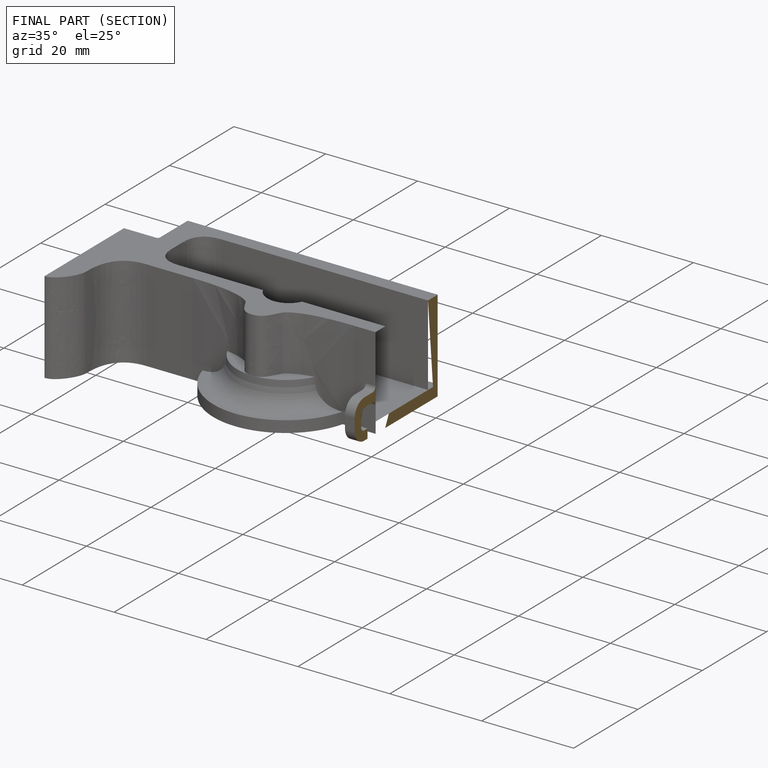
[diagram: finished part — half-section view (interior)]
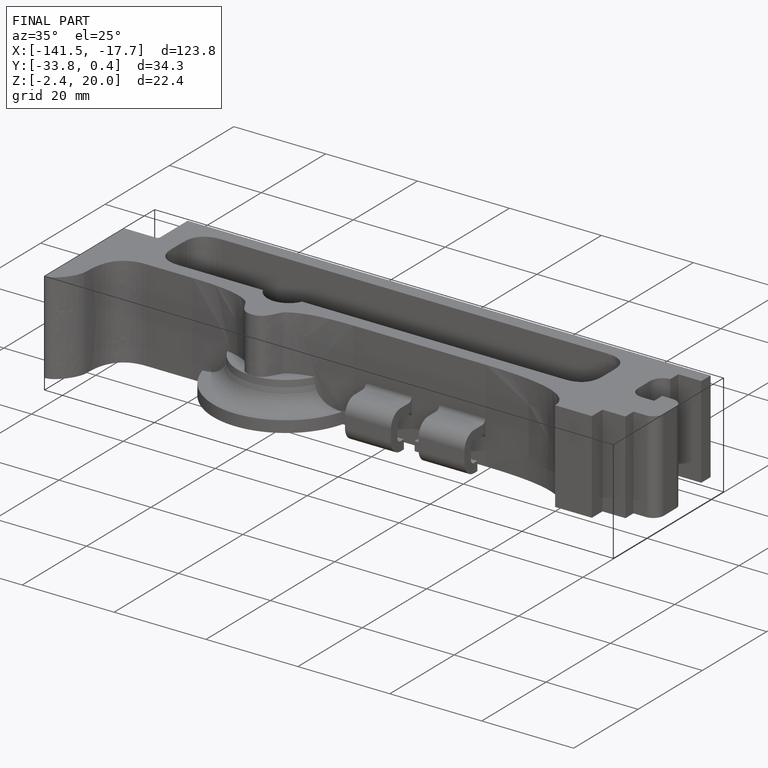
[diagram: finished part — iso view with bounding-box wireframe]
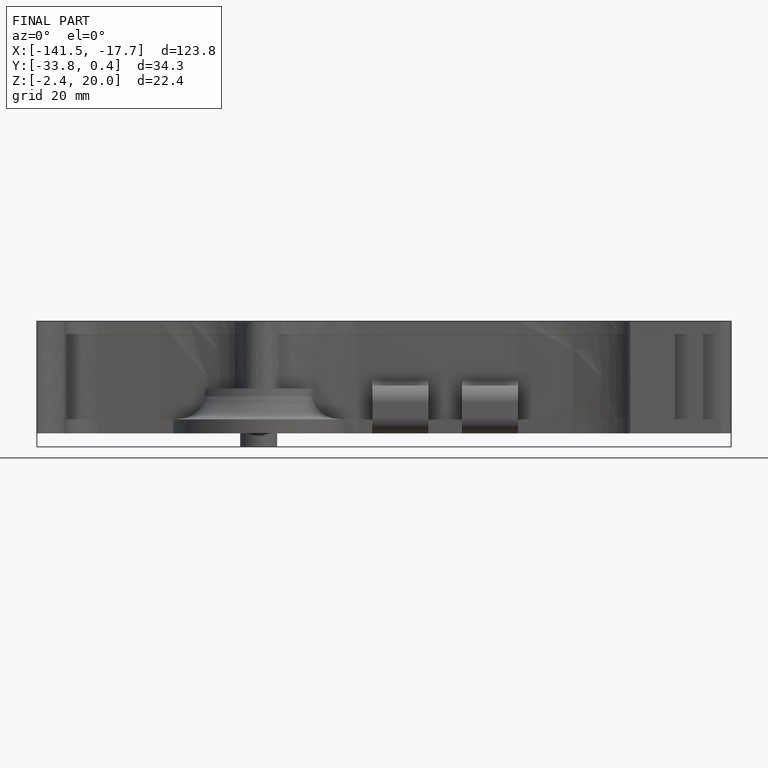
[diagram: finished part — front view with bounding-box wireframe]
